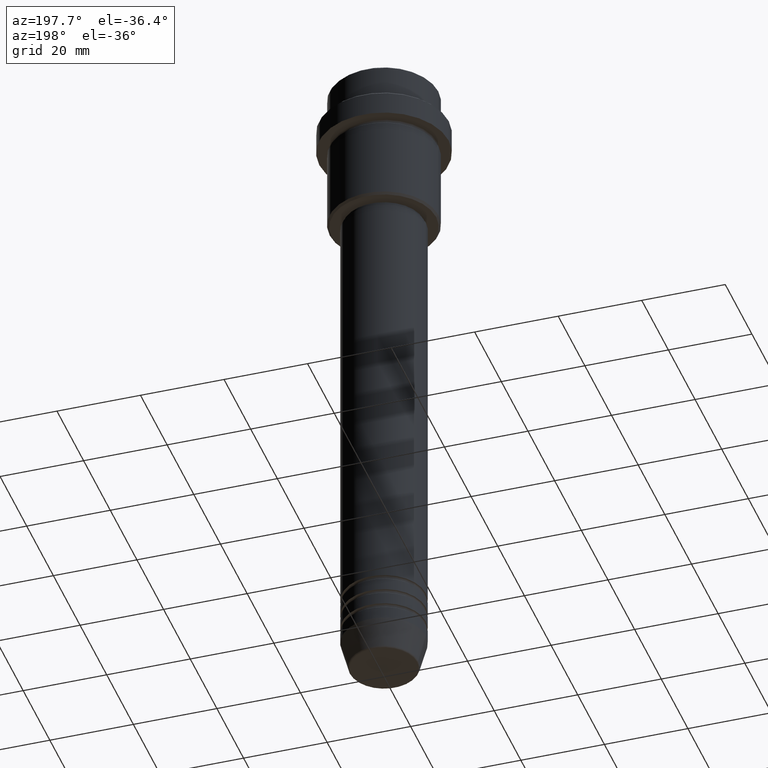
[diagram: clean part render]
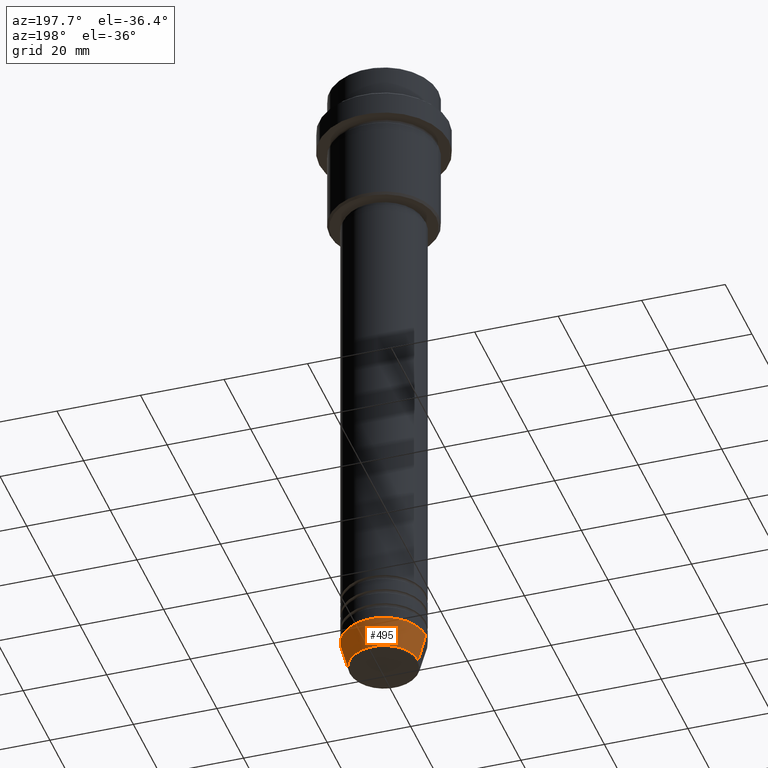
[diagram: same view with one face highlighted and labeled with its STEP entity id]
A machine part, auxiliary view. The second image highlights one B-rep face of the part: STEP entity #495.
In plain terms, the highlighted conical surface has half-angle 15 deg.
Its self-contained STEP definition (entity closure, byte-faithful):
#26 = LINE ( 'NONE', #1254, #202 ) ;
#110 = DIRECTION ( 'NONE',  ( -0.000000000000000000, -0.000000000000000000, 1.000000000000000000 ) ) ;
#142 = CIRCLE ( 'NONE', #167, 10.00000000000000000 ) ;
#167 = AXIS2_PLACEMENT_3D ( 'NONE', #393, #508, #1227 ) ;
#202 = VECTOR ( 'NONE', #262, 1000.000000000000114 ) ;
#209 = EDGE_CURVE ( 'NONE', #544, #423, #142, .T. ) ;
#233 = EDGE_CURVE ( 'NONE', #432, #710, #836, .T. ) ;
#244 = CONICAL_SURFACE ( 'NONE', #951, 10.00000000000000000, 0.2617993877991502960 ) ;
#262 = DIRECTION ( 'NONE',  ( -0.2588190451025215721, 3.169619151431775418E-17, 0.9659258262890679791 ) ) ;
#282 = EDGE_CURVE ( 'NONE', #432, #544, #627, .T. ) ;
#381 = ORIENTED_EDGE ( 'NONE', *, *, #209, .F. ) ;
#393 = CARTESIAN_POINT ( 'NONE',  ( 0.000000000000000000, 0.000000000000000000, -154.0000000000000000 ) ) ;
#423 = VERTEX_POINT ( 'NONE', #743 ) ;
#432 = VERTEX_POINT ( 'NONE', #961 ) ;
#495 = ADVANCED_FACE ( 'NONE', ( #853 ), #244, .T. ) ;
#507 = ORIENTED_EDGE ( 'NONE', *, *, #233, .T. ) ;
#508 = DIRECTION ( 'NONE',  ( -0.000000000000000000, -0.000000000000000000, 1.000000000000000000 ) ) ;
#538 = ORIENTED_EDGE ( 'NONE', *, *, #1159, .T. ) ;
#544 = VERTEX_POINT ( 'NONE', #1202 ) ;
#627 = LINE ( 'NONE', #1125, #773 ) ;
#701 = CARTESIAN_POINT ( 'NONE',  ( -8.223655072137200150, 1.115877042642912645E-15, -160.6294095225512137 ) ) ;
#710 = VERTEX_POINT ( 'NONE', #701 ) ;
#743 = CARTESIAN_POINT ( 'NONE',  ( -10.00000000000000000, 1.224646799147353256E-15, -154.0000000000000000 ) ) ;
#773 = VECTOR ( 'NONE', #788, 1000.000000000000114 ) ;
#788 = DIRECTION ( 'NONE',  ( 0.2588190451025215721, 0.000000000000000000, 0.9659258262890679791 ) ) ;
#836 = CIRCLE ( 'NONE', #1264, 8.223655072137200150 ) ;
#853 = FACE_OUTER_BOUND ( 'NONE', #1009, .T. ) ;
#951 = AXIS2_PLACEMENT_3D ( 'NONE', #1077, #1299, #1417 ) ;
#961 = CARTESIAN_POINT ( 'NONE',  ( 8.223655072137200150, 0.000000000000000000, -160.6294095225512137 ) ) ;
#1009 = EDGE_LOOP ( 'NONE', ( #507, #538, #381, #1078 ) ) ;
#1077 = CARTESIAN_POINT ( 'NONE',  ( 0.000000000000000000, 0.000000000000000000, -154.0000000000000000 ) ) ;
#1078 = ORIENTED_EDGE ( 'NONE', *, *, #282, .F. ) ;
#1125 = CARTESIAN_POINT ( 'NONE',  ( 10.00000000000000000, 0.000000000000000000, -154.0000000000000000 ) ) ;
#1159 = EDGE_CURVE ( 'NONE', #710, #423, #26, .T. ) ;
#1202 = CARTESIAN_POINT ( 'NONE',  ( 10.00000000000000000, 0.000000000000000000, -154.0000000000000000 ) ) ;
#1227 = DIRECTION ( 'NONE',  ( 1.000000000000000000, 0.000000000000000000, 0.000000000000000000 ) ) ;
#1254 = CARTESIAN_POINT ( 'NONE',  ( -10.00000000000000000, 1.224646799147353256E-15, -154.0000000000000000 ) ) ;
#1264 = AXIS2_PLACEMENT_3D ( 'NONE', #1317, #110, #1307 ) ;
#1299 = DIRECTION ( 'NONE',  ( -0.000000000000000000, -0.000000000000000000, 1.000000000000000000 ) ) ;
#1307 = DIRECTION ( 'NONE',  ( 1.000000000000000000, 0.000000000000000000, 0.000000000000000000 ) ) ;
#1317 = CARTESIAN_POINT ( 'NONE',  ( 0.000000000000000000, 0.000000000000000000, -160.6294095225512137 ) ) ;
#1417 = DIRECTION ( 'NONE',  ( 1.000000000000000000, 0.000000000000000000, 0.000000000000000000 ) ) ;